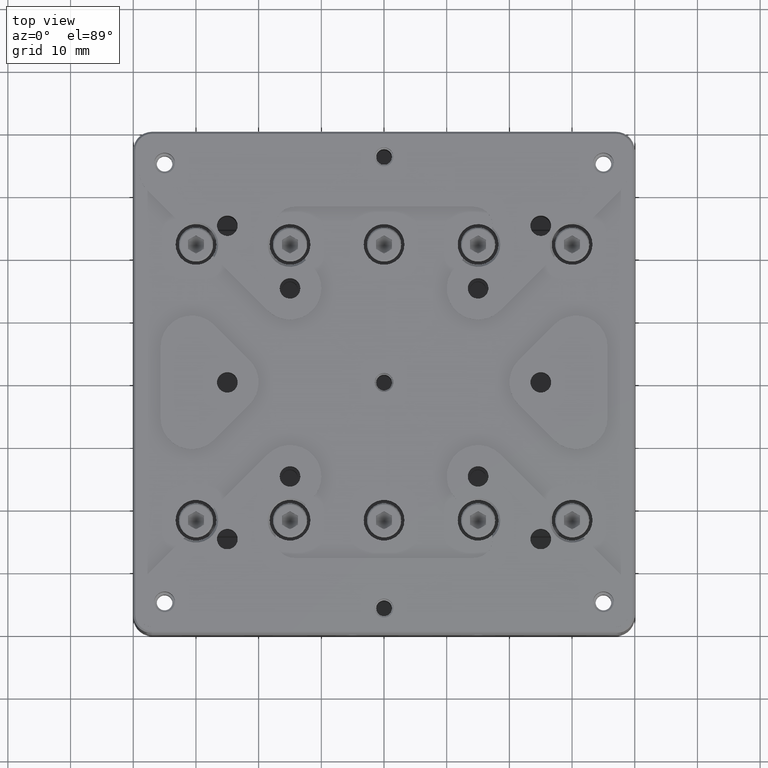
[diagram: clean part render]
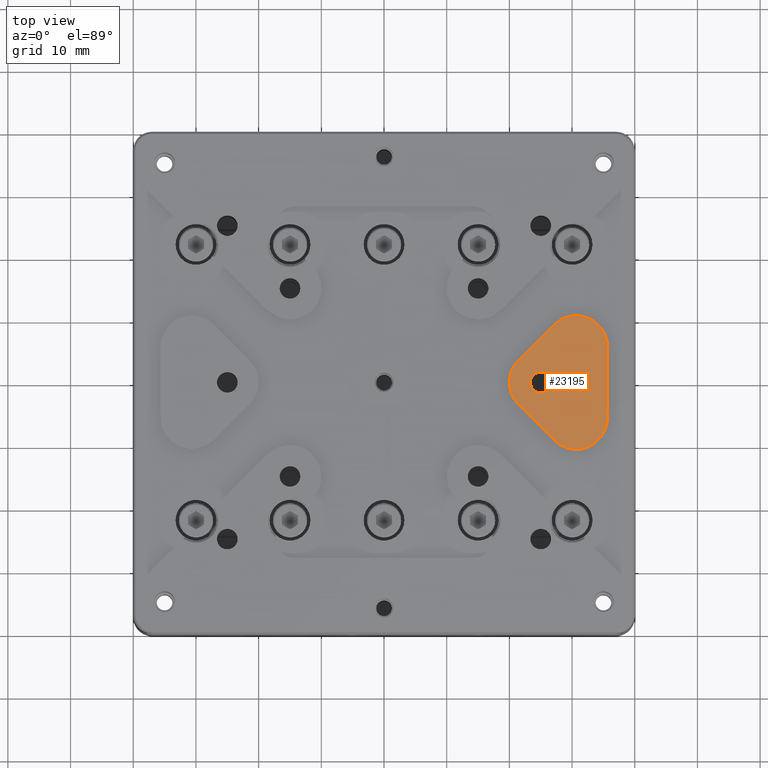
[diagram: same view with one face highlighted and labeled with its STEP entity id]
A machine part, top view. The second image highlights one B-rep face of the part: STEP entity #23195.
In plain terms, the highlighted planar face has unit normal (0, 0, 1).
Its self-contained STEP definition (entity closure, byte-faithful):
#106 = DIRECTION ( 'NONE',  ( 1.000000000000000000, 0.000000000000000000, 0.000000000000000000 ) ) ;
#591 = EDGE_CURVE ( 'NONE', #2522, #5409, #1155, .T. ) ;
#786 = LINE ( 'NONE', #16236, #6999 ) ;
#1056 = ORIENTED_EDGE ( 'NONE', *, *, #20628, .T. ) ;
#1147 = EDGE_CURVE ( 'NONE', #16273, #2373, #13835, .T. ) ;
#1155 = CIRCLE ( 'NONE', #8666, 5.000000000000000888 ) ;
#1371 = DIRECTION ( 'NONE',  ( 1.000000000000000000, 0.000000000000000000, 0.000000000000000000 ) ) ;
#2252 = DIRECTION ( 'NONE',  ( 0.7071067811864220065, -0.7071067811866730279, 0.000000000000000000 ) ) ;
#2373 = VERTEX_POINT ( 'NONE', #20561 ) ;
#2522 = VERTEX_POINT ( 'NONE', #21452 ) ;
#2726 = CARTESIAN_POINT ( 'NONE',  ( 35.65685424949000293, 40.00000000000000000, 13.50000000000000000 ) ) ;
#3031 = LINE ( 'NONE', #2726, #28707 ) ;
#4204 = CIRCLE ( 'NONE', #22045, 5.000000000000000888 ) ;
#4616 = ORIENTED_EDGE ( 'NONE', *, *, #24249, .T. ) ;
#4970 = ORIENTED_EDGE ( 'NONE', *, *, #7075, .T. ) ;
#5239 = DIRECTION ( 'NONE',  ( 1.000000000000000000, 0.000000000000000000, 0.000000000000000000 ) ) ;
#5409 = VERTEX_POINT ( 'NONE', #13733 ) ;
#5498 = ORIENTED_EDGE ( 'NONE', *, *, #591, .T. ) ;
#6999 = VECTOR ( 'NONE', #23420, 1000.000000000000000 ) ;
#7013 = FACE_BOUND ( 'NONE', #11471, .T. ) ;
#7075 = EDGE_CURVE ( 'NONE', #2373, #16273, #19206, .T. ) ;
#7158 = PLANE ( 'NONE',  #18821 ) ;
#7588 = CARTESIAN_POINT ( 'NONE',  ( 27.12132034355945365, 9.192388155423438789, 13.50000000000000000 ) ) ;
#8053 = CARTESIAN_POINT ( 'NONE',  ( 27.12132034355829902, -9.192388155424559670, 13.50000000000000000 ) ) ;
#8191 = CARTESIAN_POINT ( 'NONE',  ( 25.00000000000000000, 0.000000000000000000, 13.50000000000000000 ) ) ;
#8666 = AXIS2_PLACEMENT_3D ( 'NONE', #20889, #22951, #12086 ) ;
#8755 = CARTESIAN_POINT ( 'NONE',  ( 21.46446609407000139, -3.535533905933004650, 13.50000000000000000 ) ) ;
#9318 = CARTESIAN_POINT ( 'NONE',  ( 30.65685424948999938, 5.656854249492000442, 13.50000000000000000 ) ) ;
#10879 = EDGE_CURVE ( 'NONE', #18540, #17411, #18875, .T. ) ;
#11078 = VERTEX_POINT ( 'NONE', #7588 ) ;
#11303 = CARTESIAN_POINT ( 'NONE',  ( 35.65685424949000293, 5.656854249492000442, 13.50000000000000000 ) ) ;
#11471 = EDGE_LOOP ( 'NONE', ( #11501, #4970 ) ) ;
#11501 = ORIENTED_EDGE ( 'NONE', *, *, #1147, .T. ) ;
#12086 = DIRECTION ( 'NONE',  ( 1.000000000000000000, 0.000000000000000000, 0.000000000000000000 ) ) ;
#12649 = AXIS2_PLACEMENT_3D ( 'NONE', #24297, #21502, #1371 ) ;
#12903 = DIRECTION ( 'NONE',  ( 1.000000000000000000, 0.000000000000000000, 0.000000000000000000 ) ) ;
#13713 = AXIS2_PLACEMENT_3D ( 'NONE', #22442, #20377, #106 ) ;
#13733 = CARTESIAN_POINT ( 'NONE',  ( 21.46446609406829964, -3.535533905932554788, 13.50000000000000000 ) ) ;
#13835 = CIRCLE ( 'NONE', #21344, 1.649999999999998579 ) ;
#13845 = ORIENTED_EDGE ( 'NONE', *, *, #10879, .T. ) ;
#15016 = VECTOR ( 'NONE', #2252, 1000.000000000000000 ) ;
#16236 = CARTESIAN_POINT ( 'NONE',  ( 27.12132034356000077, 9.192388155425000207, 13.50000000000000000 ) ) ;
#16273 = VERTEX_POINT ( 'NONE', #25471 ) ;
#16871 = ORIENTED_EDGE ( 'NONE', *, *, #25774, .T. ) ;
#17022 = EDGE_LOOP ( 'NONE', ( #1056, #5498, #4616, #13845, #16871, #19095 ) ) ;
#17411 = VERTEX_POINT ( 'NONE', #28477 ) ;
#18479 = DIRECTION ( 'NONE',  ( 0.000000000000000000, 0.000000000000000000, 1.000000000000000000 ) ) ;
#18540 = VERTEX_POINT ( 'NONE', #8053 ) ;
#18821 = AXIS2_PLACEMENT_3D ( 'NONE', #25395, #18479, #5239 ) ;
#18875 = CIRCLE ( 'NONE', #13713, 5.000000000000000888 ) ;
#19095 = ORIENTED_EDGE ( 'NONE', *, *, #24448, .T. ) ;
#19206 = CIRCLE ( 'NONE', #12649, 1.649999999999998579 ) ;
#20377 = DIRECTION ( 'NONE',  ( 0.000000000000000000, 0.000000000000000000, 1.000000000000000000 ) ) ;
#20525 = FACE_OUTER_BOUND ( 'NONE', #17022, .T. ) ;
#20561 = CARTESIAN_POINT ( 'NONE',  ( 23.34999999999999787, 2.020667218593134974E-16, 13.50000000000000000 ) ) ;
#20628 = EDGE_CURVE ( 'NONE', #11078, #2522, #786, .T. ) ;
#20889 = CARTESIAN_POINT ( 'NONE',  ( 25.00000000000000000, 0.000000000000000000, 13.50000000000000000 ) ) ;
#21344 = AXIS2_PLACEMENT_3D ( 'NONE', #8191, #24075, #12903 ) ;
#21452 = CARTESIAN_POINT ( 'NONE',  ( 21.46446609406829964, 3.535533905932554788, 13.50000000000000000 ) ) ;
#21502 = DIRECTION ( 'NONE',  ( 0.000000000000000000, 0.000000000000000000, -1.000000000000000000 ) ) ;
#22045 = AXIS2_PLACEMENT_3D ( 'NONE', #9318, #24769, #25342 ) ;
#22442 = CARTESIAN_POINT ( 'NONE',  ( 30.65685424948999938, -5.656854249492000442, 13.50000000000000000 ) ) ;
#22951 = DIRECTION ( 'NONE',  ( 0.000000000000000000, 0.000000000000000000, 1.000000000000000000 ) ) ;
#23151 = VERTEX_POINT ( 'NONE', #11303 ) ;
#23195 = ADVANCED_FACE ( 'NONE', ( #20525, #7013 ), #7158, .T. ) ;
#23420 = DIRECTION ( 'NONE',  ( -0.7071067811864220065, -0.7071067811866730279, 0.000000000000000000 ) ) ;
#23469 = DIRECTION ( 'NONE',  ( 0.000000000000000000, 1.000000000000000000, 0.000000000000000000 ) ) ;
#24075 = DIRECTION ( 'NONE',  ( 0.000000000000000000, 0.000000000000000000, -1.000000000000000000 ) ) ;
#24249 = EDGE_CURVE ( 'NONE', #5409, #18540, #26247, .T. ) ;
#24297 = CARTESIAN_POINT ( 'NONE',  ( 25.00000000000000000, 0.000000000000000000, 13.50000000000000000 ) ) ;
#24448 = EDGE_CURVE ( 'NONE', #23151, #11078, #4204, .T. ) ;
#24769 = DIRECTION ( 'NONE',  ( 0.000000000000000000, 0.000000000000000000, 1.000000000000000000 ) ) ;
#25342 = DIRECTION ( 'NONE',  ( 1.000000000000000000, 0.000000000000000000, 0.000000000000000000 ) ) ;
#25395 = CARTESIAN_POINT ( 'NONE',  ( -40.00000000000000000, 40.00000000000000000, 13.50000000000000000 ) ) ;
#25471 = CARTESIAN_POINT ( 'NONE',  ( 26.64999999999999858, 0.000000000000000000, 13.50000000000000000 ) ) ;
#25774 = EDGE_CURVE ( 'NONE', #17411, #23151, #3031, .T. ) ;
#26247 = LINE ( 'NONE', #8755, #15016 ) ;
#28477 = CARTESIAN_POINT ( 'NONE',  ( 35.65685424949000293, -5.656854249492000442, 13.50000000000000000 ) ) ;
#28707 = VECTOR ( 'NONE', #23469, 1000.000000000000000 ) ;